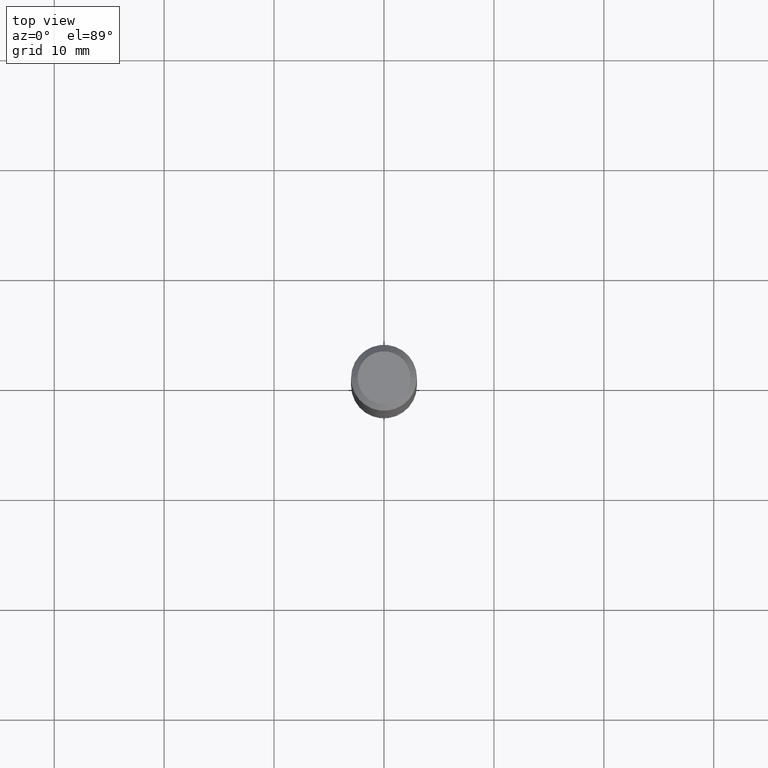
[diagram: clean part render]
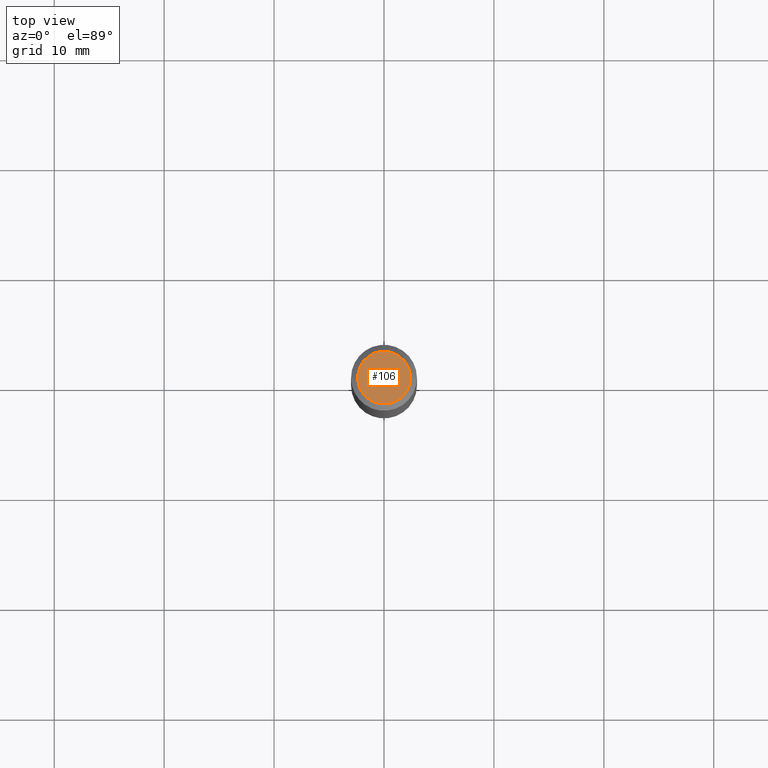
[diagram: same view with one face highlighted and labeled with its STEP entity id]
A machine part, top view. The second image highlights one B-rep face of the part: STEP entity #106.
In plain terms, the highlighted planar face has unit normal (0, -0, -1).
Its self-contained STEP definition (entity closure, byte-faithful):
#6 = DIRECTION ( 'NONE',  ( 1.000000000000000000, -6.982962677686267499E-15, 4.875432709231658792E-29 ) ) ;
#8 = CARTESIAN_POINT ( 'NONE',  ( 4.716267017698007905E-46, -6.733579360998555036E-32, -1.928573779297252010E-17 ) ) ;
#47 = DIRECTION ( 'NONE',  ( -2.445468806185136597E-29, 3.491481338843145583E-15, 1.000000000000000000 ) ) ;
#62 = AXIS2_PLACEMENT_3D ( 'NONE', #459, #47, #162 ) ;
#79 = FACE_OUTER_BOUND ( 'NONE', #241, .T. ) ;
#106 = ADVANCED_FACE ( 'NONE', ( #79 ), #191, .F. ) ;
#110 = CARTESIAN_POINT ( 'NONE',  ( 0.09447999999999998066, -7.704367267948738690E-16, -1.928573779296752193E-17 ) ) ;
#134 = ORIENTED_EDGE ( 'NONE', *, *, #161, .T. ) ;
#146 = VERTEX_POINT ( 'NONE', #110 ) ;
#158 = AXIS2_PLACEMENT_3D ( 'NONE', #8, #452, #6 ) ;
#161 = EDGE_CURVE ( 'NONE', #397, #146, #344, .T. ) ;
#162 = DIRECTION ( 'NONE',  ( 1.000000000000000000, -6.982962677686267499E-15, 4.875432709231658792E-29 ) ) ;
#189 = DIRECTION ( 'NONE',  ( 2.438088387897960049E-29, -3.491481338843145188E-15, -1.000000000000000000 ) ) ;
#191 = PLANE ( 'NONE',  #328 ) ;
#241 = EDGE_LOOP ( 'NONE', ( #134, #327 ) ) ;
#268 = EDGE_CURVE ( 'NONE', #146, #397, #277, .T. ) ;
#277 = CIRCLE ( 'NONE', #62, 0.09447999999999998066 ) ;
#298 = DIRECTION ( 'NONE',  ( -1.000000000000000000, 6.982962677686265922E-15, -4.876176775795935793E-29 ) ) ;
#327 = ORIENTED_EDGE ( 'NONE', *, *, #268, .T. ) ;
#328 = AXIS2_PLACEMENT_3D ( 'NONE', #416, #189, #298 ) ;
#344 = CIRCLE ( 'NONE', #158, 0.09447999999999998066 ) ;
#357 = CARTESIAN_POINT ( 'NONE',  ( -0.09447999999999998066, 7.009847083995354710E-16, -1.928573779297727792E-17 ) ) ;
#397 = VERTEX_POINT ( 'NONE', #357 ) ;
#416 = CARTESIAN_POINT ( 'NONE',  ( 2.358133508849003952E-46, -3.366789680499277518E-32, -9.642868896486260050E-18 ) ) ;
#452 = DIRECTION ( 'NONE',  ( -2.445468806185136597E-29, 3.491481338843145583E-15, 1.000000000000000000 ) ) ;
#459 = CARTESIAN_POINT ( 'NONE',  ( 4.716267017698007905E-46, -6.733579360998555036E-32, -1.928573779297252010E-17 ) ) ;